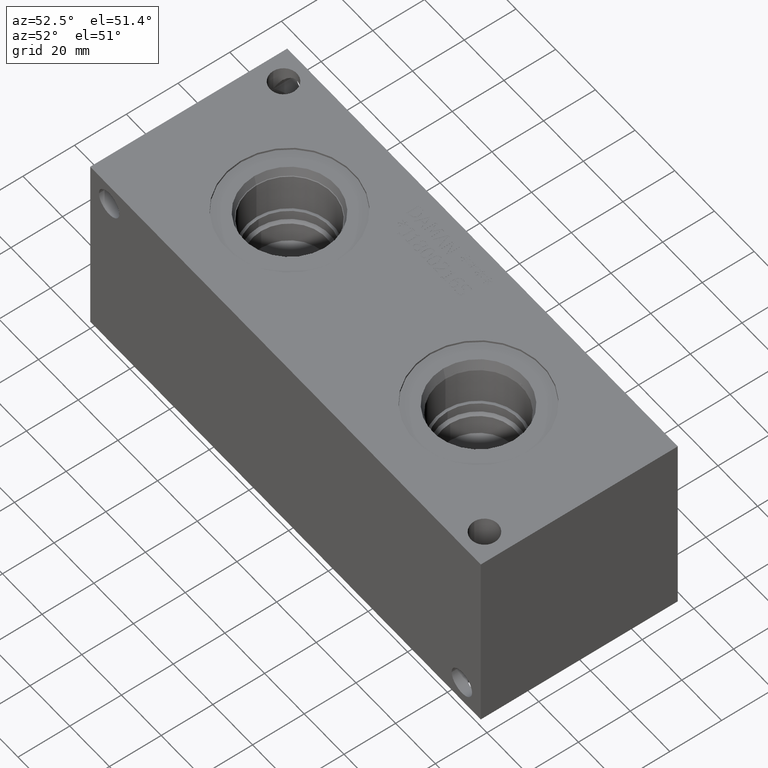
[diagram: clean part render]
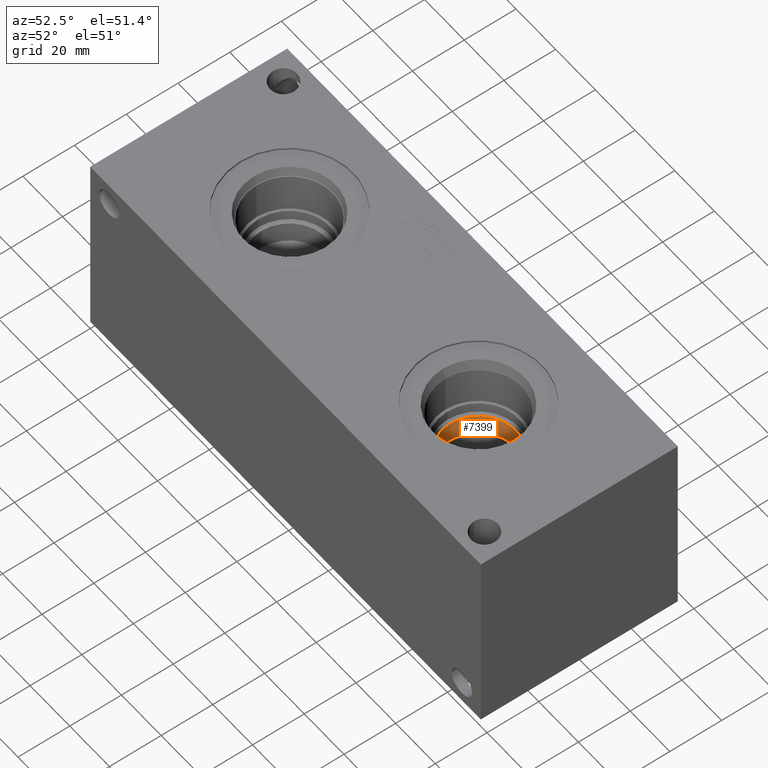
[diagram: same view with one face highlighted and labeled with its STEP entity id]
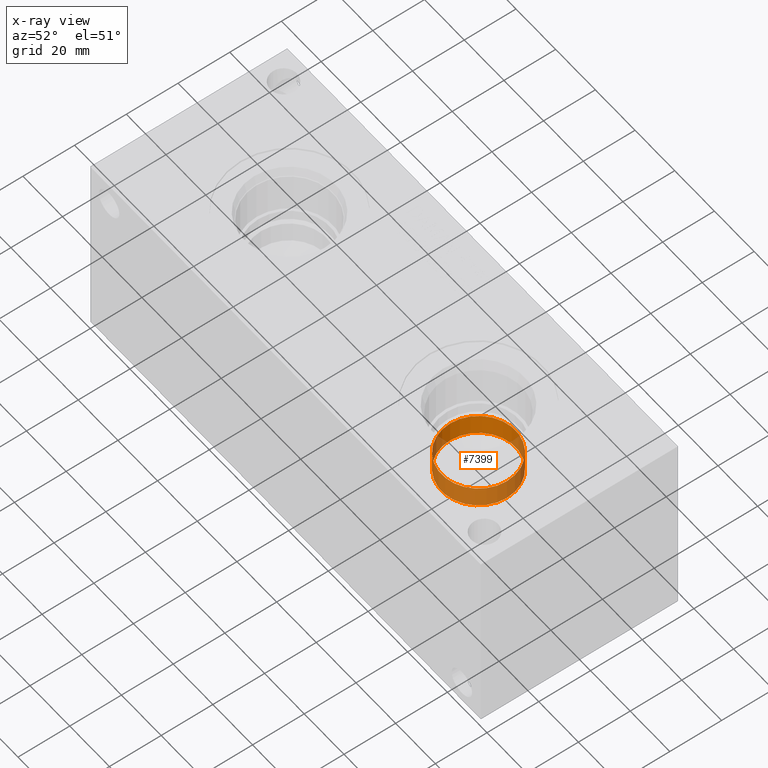
[diagram: x-ray of the same camera — body ghosted, the highlighted face saturated]
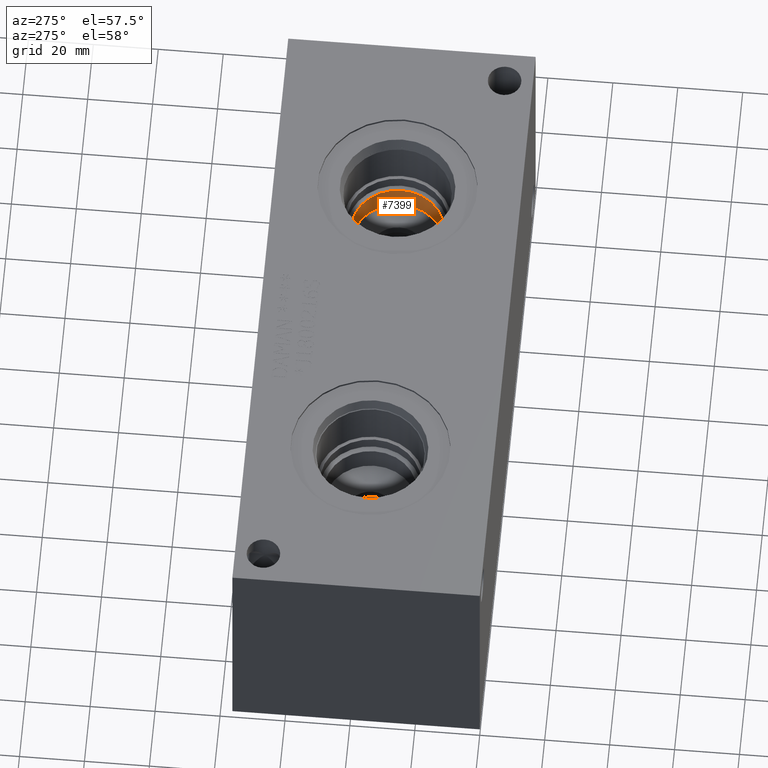
[diagram: same view with one face highlighted and labeled with its STEP entity id]
A machine part, auxiliary view. The second image highlights one B-rep face of the part: STEP entity #7399.
The next image is the same camera in x-ray: the body ghosted, the highlighted face saturated — about 60% of this face is hidden behind the body in this view.
A second angle (auxiliary view) of the same face is appended — the face is thin or edge-on in the first view.
In plain terms, the highlighted cylindrical surface (bore or boss wall) has radius 14.2875 mm, axis along (0, 0, 1).
Its self-contained STEP definition (entity closure, byte-faithful):
#34=CYLINDRICAL_SURFACE('',#7744,14.2875);
#127=CIRCLE('',#7741,14.2875);
#129=CIRCLE('',#7743,14.2875);
#130=CIRCLE('',#7745,14.2875);
#872=FACE_OUTER_BOUND('',#1287,.T.);
#1287=EDGE_LOOP('',(#6334,#6335,#6336,#6337,#6338));
#2016=LINE('',#12579,#2731);
#2731=VECTOR('',#9102,14.2875);
#3395=VERTEX_POINT('',#12569);
#3396=VERTEX_POINT('',#12570);
#3398=VERTEX_POINT('',#12577);
#4385=EDGE_CURVE('',#3395,#3396,#127,.T.);
#4388=EDGE_CURVE('',#3396,#3395,#129,.T.);
#4389=EDGE_CURVE('',#3398,#3398,#130,.T.);
#4390=EDGE_CURVE('',#3398,#3396,#2016,.T.);
#6334=ORIENTED_EDGE('',*,*,#4389,.F.);
#6335=ORIENTED_EDGE('',*,*,#4390,.T.);
#6336=ORIENTED_EDGE('',*,*,#4385,.F.);
#6337=ORIENTED_EDGE('',*,*,#4388,.F.);
#6338=ORIENTED_EDGE('',*,*,#4390,.F.);
#7399=ADVANCED_FACE('',(#872),#34,.F.);
#7741=AXIS2_PLACEMENT_3D('',#12571,#9091,#9092);
#7743=AXIS2_PLACEMENT_3D('',#12575,#9096,#9097);
#7744=AXIS2_PLACEMENT_3D('',#12576,#9098,#9099);
#7745=AXIS2_PLACEMENT_3D('',#12578,#9100,#9101);
#9091=DIRECTION('center_axis',(0.,0.,1.));
#9092=DIRECTION('ref_axis',(1.,0.,0.));
#9096=DIRECTION('center_axis',(0.,0.,1.));
#9097=DIRECTION('ref_axis',(1.,0.,0.));
#9098=DIRECTION('center_axis',(0.,0.,1.));
#9099=DIRECTION('ref_axis',(1.,0.,0.));
#9100=DIRECTION('center_axis',(0.,0.,-1.));
#9101=DIRECTION('ref_axis',(1.,0.,0.));
#9102=DIRECTION('',(0.,0.,-1.));
#12569=CARTESIAN_POINT('',(160.3375,38.1,43.55291));
#12570=CARTESIAN_POINT('',(131.7625,38.1,43.55291));
#12571=CARTESIAN_POINT('Origin',(146.05,38.1,43.55291));
#12575=CARTESIAN_POINT('Origin',(146.05,38.1,43.55291));
#12576=CARTESIAN_POINT('Origin',(146.05,38.1,59.876455));
#12577=CARTESIAN_POINT('',(131.7625,38.1,51.8018031438377));
#12578=CARTESIAN_POINT('Origin',(146.05,38.1,51.8018031438377));
#12579=CARTESIAN_POINT('',(131.7625,38.1,59.876455));